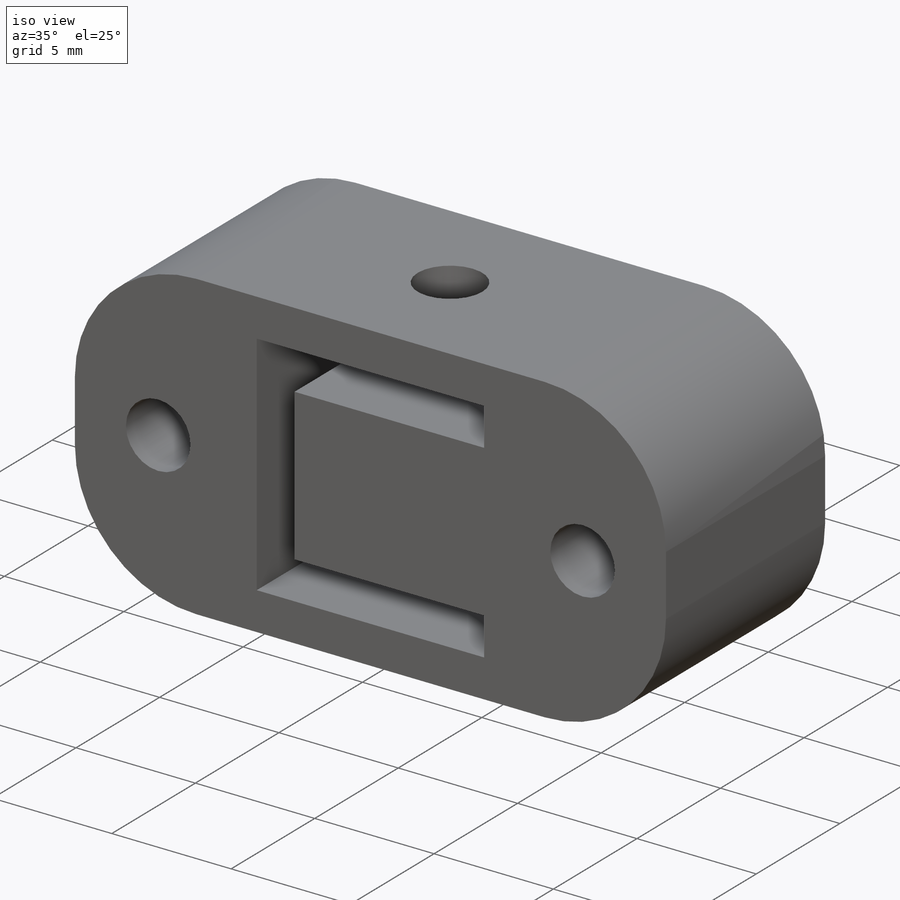
[diagram: iso view]
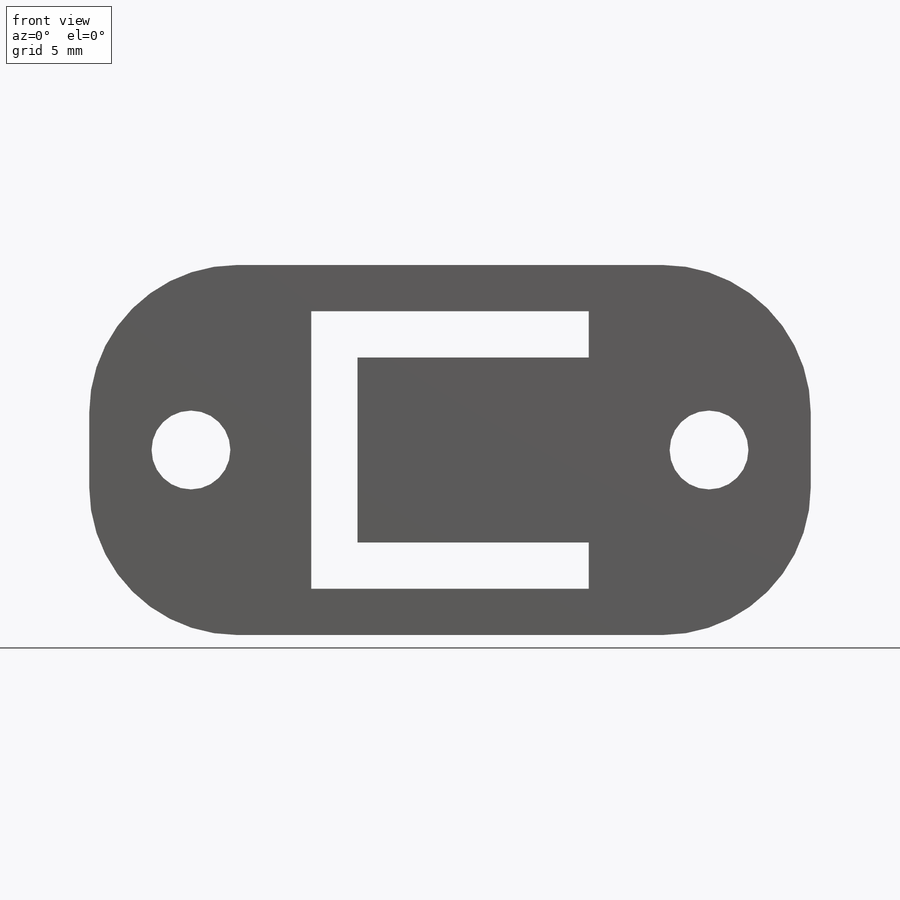
[diagram: front view]
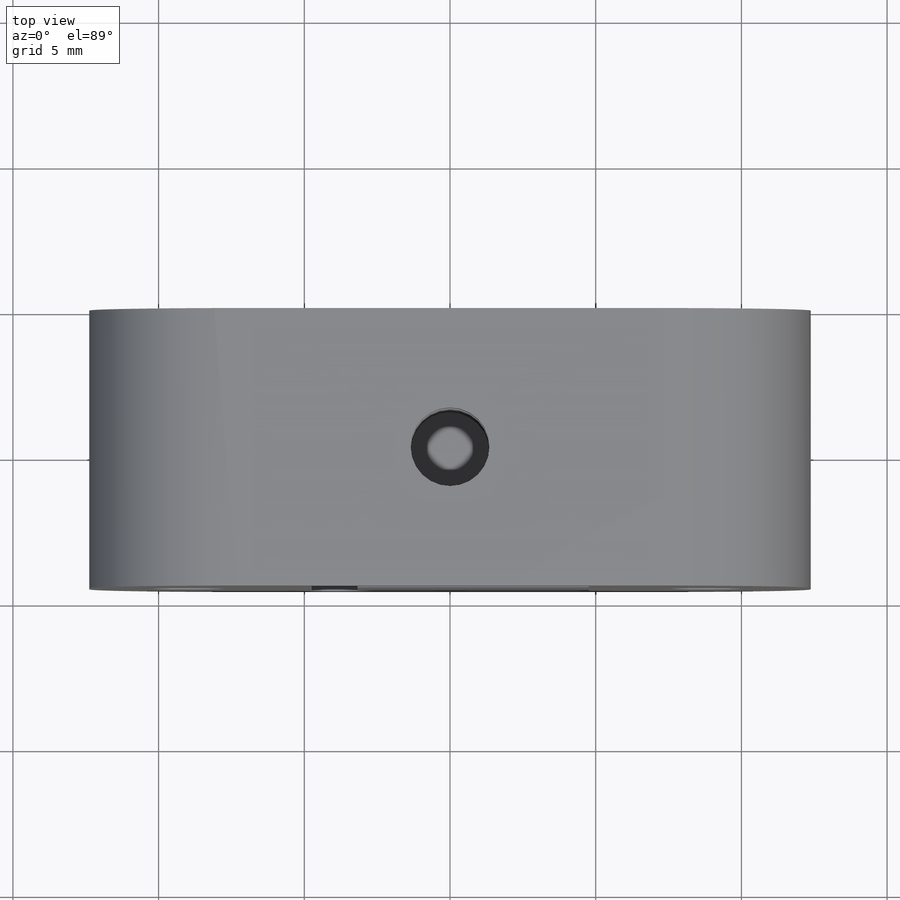
[diagram: top view]
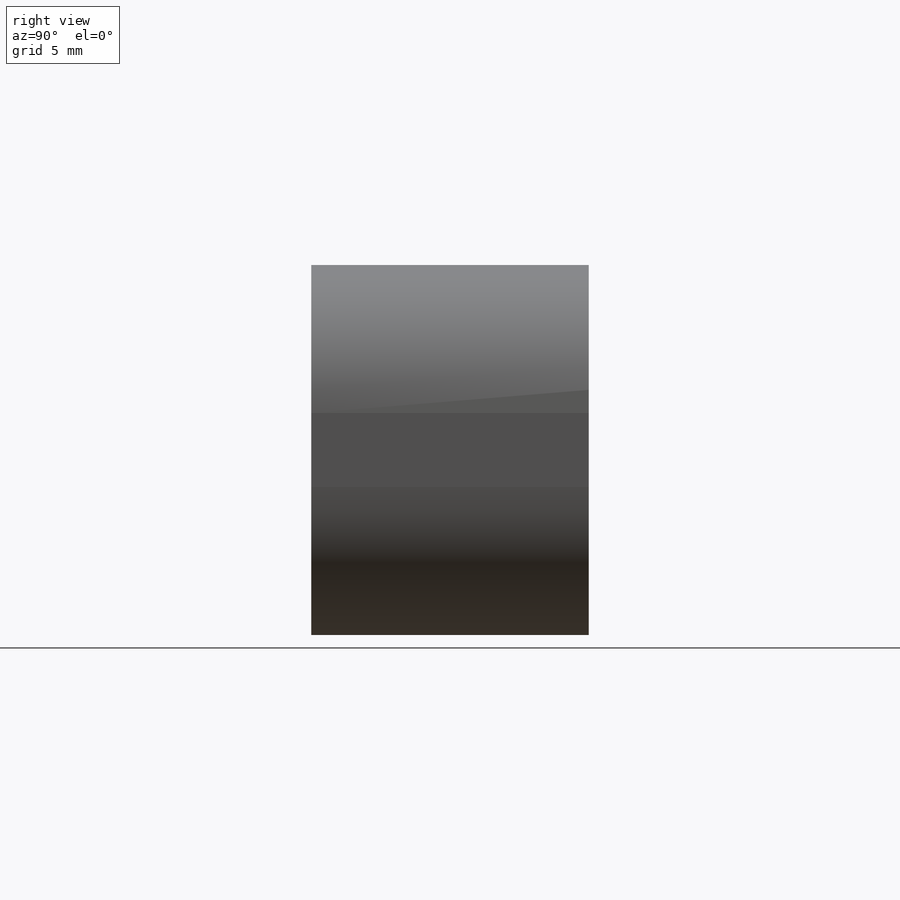
[diagram: right view]
SOLIDWORKS PART (.sldprt)
format: sldprt  version: not decoded by parser v0  size: 247,808 bytes
history: native  units: mm
features: sketch x6, hole x2, material x1, extrude x1, cut_extrude x1, fillet x1, thread x1 (+11 scaffold rows collapsed)
feature tree (24):
  scaffold x11  (default folders/planes/origin — collapsed)
  material  "Material <not specified>"
  sketch  "Sketch1"  dims[D1=12.7mm D2=24.765mm]
  extrude  "Boss-Extrude1"  Depth=9.525mm
  sketch  "Sketch2"  dims[D1=9.525mm D2=4.7625mm D3=1.5875mm D4=1.5875mm]
  cut_extrude  "Cut-Extrude1"  [1 undecoded]
  fillet  "Fillet1"  Radius=5.08mm
  hole  "#6-32 Tapped Hole2"  Diameter=2.7051mm Depth=9.525mm
  sketch  "Sketch6"  dims[D1=8.89mm]
  sketch  "Sketch3"  dims[hole-wizard template sketch: 60 standard entries collapsed; hole parameters kept: c18.Thru Tap Drill Depth=9.525mm]
  hole  "#6-32 Tapped Hole1"  Diameter=2.7051mm Depth=11.176mm
  sketch  "Sketch8"
  sketch  "Sketch7"  dims[hole-wizard template sketch: 47 standard entries collapsed; hole parameters kept: c15.Tap Drill Depth=11.176mm c15.D3=~14.816244mm c15.Drill Angle=180.0deg]
  thread  "Hole Thread1"  Diameter=7.112mm  [1 undecoded]
decode coverage: 10 of 12 modeling features carry decoded parameters
note: ~ marks probable driven/reference dimensions
note: 2 parameter values undecoded
note: suppression state not decoded; provenance and decode notes live in map.json
